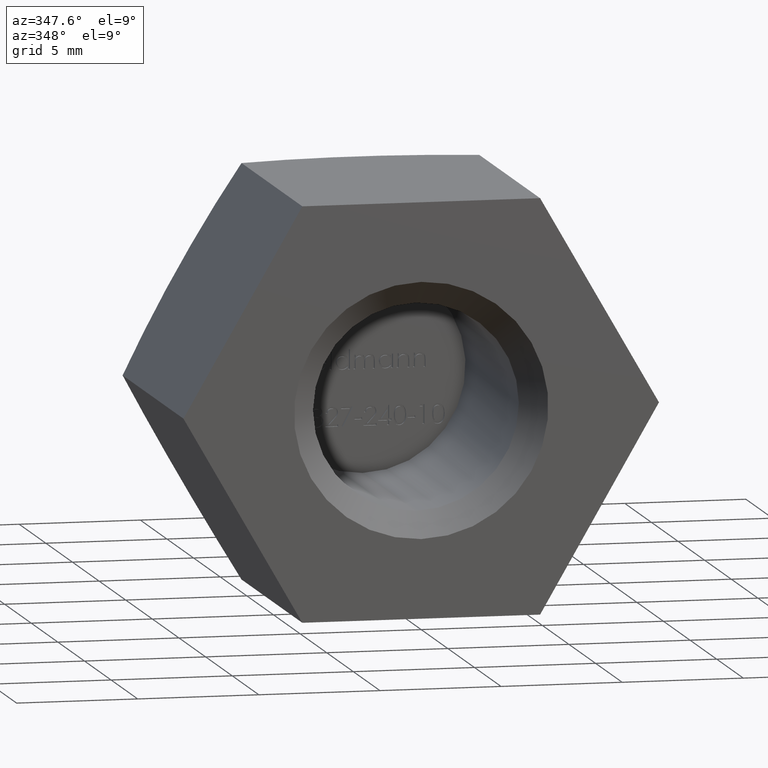
[diagram: clean part render]
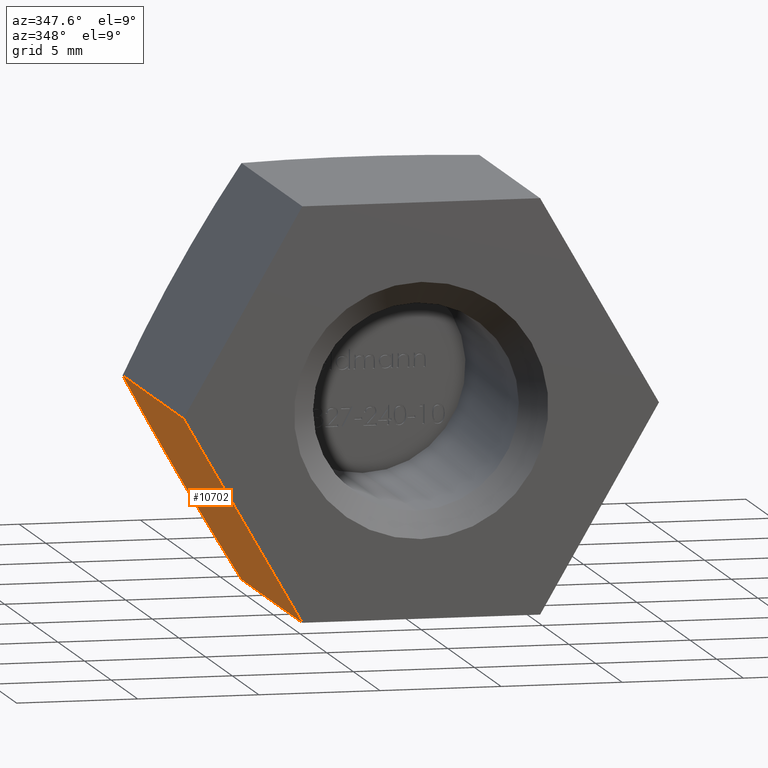
[diagram: same view with one face highlighted and labeled with its STEP entity id]
A machine part, auxiliary view. The second image highlights one B-rep face of the part: STEP entity #10702.
In plain terms, the highlighted planar face has unit normal (0.866, -0, 0.5).
Its self-contained STEP definition (entity closure, byte-faithful):
#877 = DIRECTION ( 'NONE',  ( -0.000000000000000000, -1.000000000000000000, -0.000000000000000000 ) ) ;
#1280 = VERTEX_POINT ( 'NONE', #8284 ) ;
#1714 = CARTESIAN_POINT ( 'NONE',  ( -4.907477288111815383, 11.42603416347697731, -8.500000000000001776 ) ) ;
#1833 = EDGE_CURVE ( 'NONE', #12482, #7891, #7765, .T. ) ;
#2196 = CARTESIAN_POINT ( 'NONE',  ( -9.814954576223639648, 0.000000000000000000, -5.202893113404952294E-15 ) ) ;
#2648 = AXIS2_PLACEMENT_3D ( 'NONE', #2946, #7431, #2840 ) ;
#2832 = ORIENTED_EDGE ( 'NONE', *, *, #9184, .T. ) ;
#2840 = DIRECTION ( 'NONE',  ( 0.5000000000000001110, 0.000000000000000000, -0.8660254037844384856 ) ) ;
#2946 = CARTESIAN_POINT ( 'NONE',  ( -4.907477288111819824, 14.00000000000000000, -8.500000000000001776 ) ) ;
#3355 = CARTESIAN_POINT ( 'NONE',  ( -4.907477288111819824, 0.000000000000000000, -8.500000000000001776 ) ) ;
#4763 = DIRECTION ( 'NONE',  ( -0.000000000000000000, -1.000000000000000000, -0.000000000000000000 ) ) ;
#5294 = VERTEX_POINT ( 'NONE', #1714 ) ;
#5406 = AXIS2_PLACEMENT_3D ( 'NONE', #10715, #6079, #11787 ) ;
#5798 = VECTOR ( 'NONE', #14263, 1000.000000000000227 ) ;
#5817 = VECTOR ( 'NONE', #877, 1000.000000000000000 ) ;
#6079 = DIRECTION ( 'NONE',  ( -0.8660254037844387076, 0.000000000000000000, -0.5000000000000002220 ) ) ;
#6548 = VECTOR ( 'NONE', #4763, 1000.000000000000000 ) ;
#6771 = ORIENTED_EDGE ( 'NONE', *, *, #8823, .T. ) ;
#7431 = DIRECTION ( 'NONE',  ( 0.8660254037844385966, -0.000000000000000000, 0.5000000000000002220 ) ) ;
#7765 = LINE ( 'NONE', #10769, #5798 ) ;
#7891 = VERTEX_POINT ( 'NONE', #2196 ) ;
#8284 = CARTESIAN_POINT ( 'NONE',  ( -9.814954576223639648, 11.42603416347697731, -8.673617379884035472E-16 ) ) ;
#8485 = LINE ( 'NONE', #13309, #5817 ) ;
#8515 = PLANE ( 'NONE',  #2648 ) ;
#8823 = EDGE_CURVE ( 'NONE', #5294, #12482, #14006, .T. ) ;
#9184 = EDGE_CURVE ( 'NONE', #1280, #5294, #10313, .T. ) ;
#9920 = EDGE_CURVE ( 'NONE', #1280, #7891, #8485, .T. ) ;
#10313 = CIRCLE ( 'NONE', #5406, 18.10386699023166912 ) ;
#10702 = ADVANCED_FACE ( 'NONE', ( #11329 ), #8515, .F. ) ;
#10715 = CARTESIAN_POINT ( 'NONE',  ( -7.361215932167727516, -6.000000000000000000, -4.250000000000000888 ) ) ;
#10769 = CARTESIAN_POINT ( 'NONE',  ( -4.907477288111819824, 0.000000000000000000, -8.500000000000001776 ) ) ;
#11329 = FACE_OUTER_BOUND ( 'NONE', #13574, .T. ) ;
#11344 = ORIENTED_EDGE ( 'NONE', *, *, #9920, .F. ) ;
#11787 = DIRECTION ( 'NONE',  ( 0.5000000000000001110, -1.772681180373622302E-15, -0.8660254037844385966 ) ) ;
#11796 = ORIENTED_EDGE ( 'NONE', *, *, #1833, .T. ) ;
#12482 = VERTEX_POINT ( 'NONE', #3355 ) ;
#12649 = CARTESIAN_POINT ( 'NONE',  ( -4.907477288111819824, 14.00000000000000000, -8.500000000000001776 ) ) ;
#13309 = CARTESIAN_POINT ( 'NONE',  ( -9.814954576223639648, 14.00000000000000000, -5.202893113404952294E-15 ) ) ;
#13574 = EDGE_LOOP ( 'NONE', ( #11344, #2832, #6771, #11796 ) ) ;
#14006 = LINE ( 'NONE', #12649, #6548 ) ;
#14263 = DIRECTION ( 'NONE',  ( -0.5000000000000001110, 0.000000000000000000, 0.8660254037844384856 ) ) ;